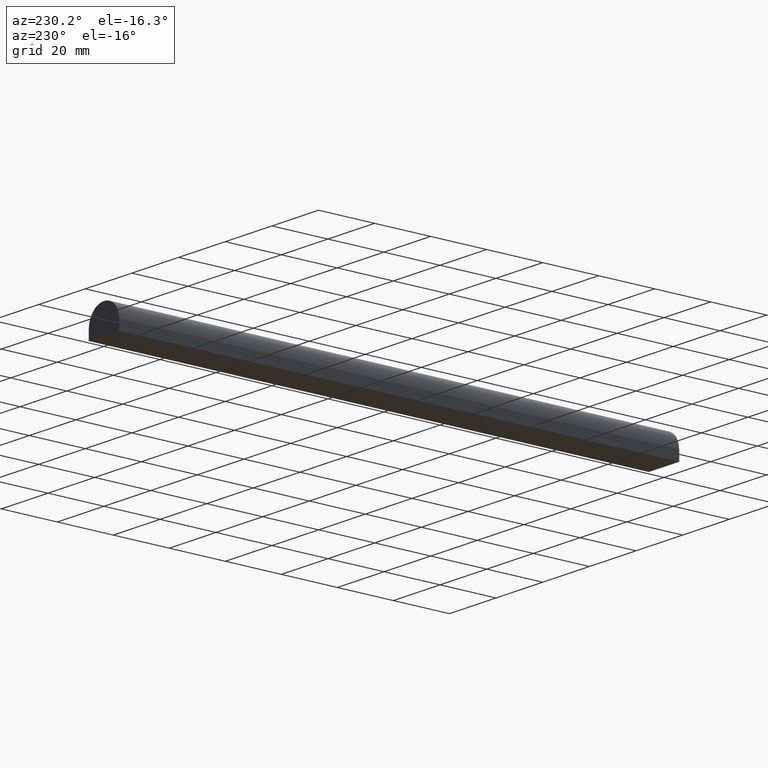
[diagram: clean part render]
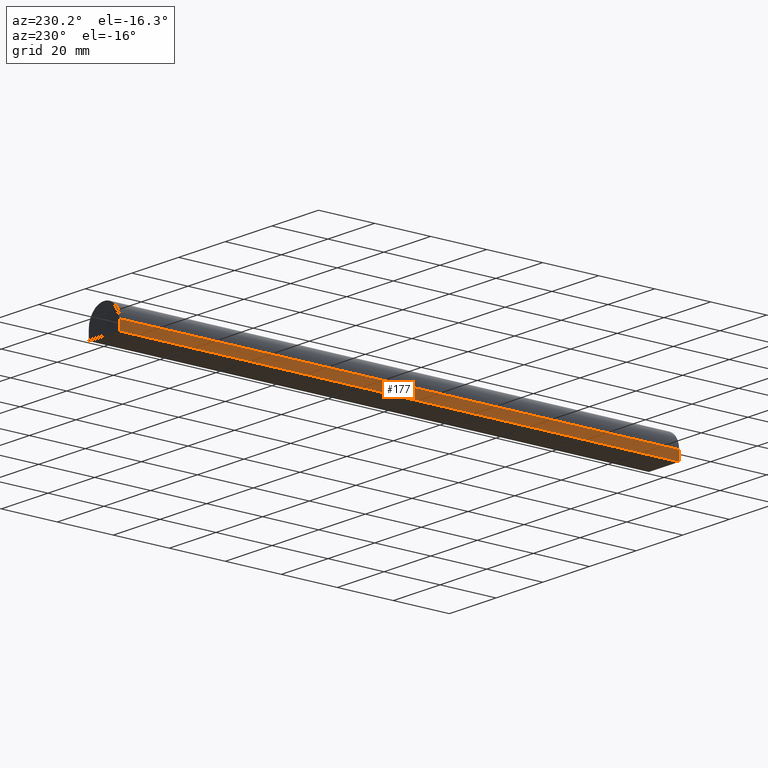
[diagram: same view with one face highlighted and labeled with its STEP entity id]
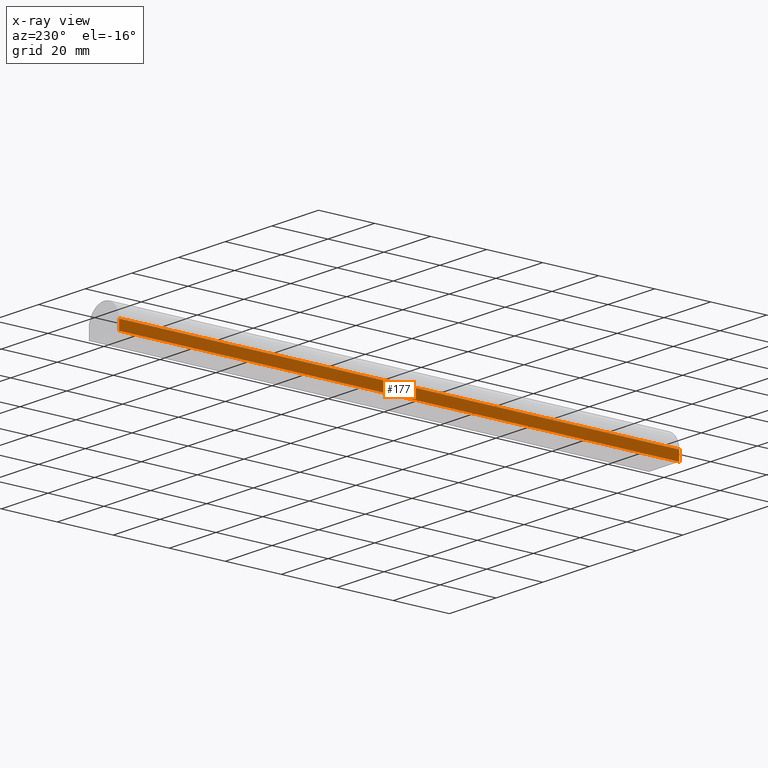
[diagram: x-ray of the same camera — body ghosted, the highlighted face saturated]
A machine part, auxiliary view. The second image highlights one B-rep face of the part: STEP entity #177.
The next image is the same camera in x-ray: the body ghosted, the highlighted face saturated — about 0% of this face is hidden behind the body in this view.
In plain terms, the highlighted planar face has unit normal (-1, 0, 0).
Its self-contained STEP definition (entity closure, byte-faithful):
#6 = DIRECTION ( 'NONE',  ( 0.0000000000000000000, 0.0000000000000000000, 1.000000000000000000 ) ) ;
#19 = PLANE ( 'NONE',  #131 ) ;
#23 = CARTESIAN_POINT ( 'NONE',  ( -6.500000000000000000, 0.0000000000000000000, -1.500000000000000000 ) ) ;
#39 = EDGE_CURVE ( 'NONE', #129, #91, #90, .T. ) ;
#41 = LINE ( 'NONE', #51, #47 ) ;
#45 = CARTESIAN_POINT ( 'NONE',  ( -6.500000000000000000, 200.0000000000000000, -5.000000000000000000 ) ) ;
#47 = VECTOR ( 'NONE', #110, 1000.000000000000000 ) ;
#51 = CARTESIAN_POINT ( 'NONE',  ( -6.500000000000000000, 0.0000000000000000000, 0.0000000000000000000 ) ) ;
#60 = VECTOR ( 'NONE', #174, 1000.000000000000000 ) ;
#62 = EDGE_CURVE ( 'NONE', #74, #129, #208, .T. ) ;
#64 = LINE ( 'NONE', #106, #92 ) ;
#74 = VERTEX_POINT ( 'NONE', #113 ) ;
#75 = VERTEX_POINT ( 'NONE', #23 ) ;
#77 = ORIENTED_EDGE ( 'NONE', *, *, #39, .T. ) ;
#90 = LINE ( 'NONE', #96, #115 ) ;
#91 = VERTEX_POINT ( 'NONE', #192 ) ;
#92 = VECTOR ( 'NONE', #107, 1000.000000000000000 ) ;
#96 = CARTESIAN_POINT ( 'NONE',  ( -6.500000000000000000, 1000.000000000000000, -5.000000000000000000 ) ) ;
#103 = ORIENTED_EDGE ( 'NONE', *, *, #62, .T. ) ;
#106 = CARTESIAN_POINT ( 'NONE',  ( -6.500000000000000000, 1000.000000000000000, -1.500000000000000000 ) ) ;
#107 = DIRECTION ( 'NONE',  ( 0.0000000000000000000, -1.000000000000000000, 0.0000000000000000000 ) ) ;
#108 = EDGE_CURVE ( 'NONE', #75, #91, #41, .T. ) ;
#110 = DIRECTION ( 'NONE',  ( -0.0000000000000000000, -0.0000000000000000000, -1.000000000000000000 ) ) ;
#113 = CARTESIAN_POINT ( 'NONE',  ( -6.500000000000000000, 200.0000000000000000, -1.500000000000000000 ) ) ;
#115 = VECTOR ( 'NONE', #191, 1000.000000000000000 ) ;
#118 = DIRECTION ( 'NONE',  ( -1.000000000000000000, 0.0000000000000000000, 0.0000000000000000000 ) ) ;
#129 = VERTEX_POINT ( 'NONE', #45 ) ;
#131 = AXIS2_PLACEMENT_3D ( 'NONE', #215, #118, #6 ) ;
#135 = CARTESIAN_POINT ( 'NONE',  ( -6.500000000000000000, 200.0000000000000000, 0.0000000000000000000 ) ) ;
#145 = ORIENTED_EDGE ( 'NONE', *, *, #108, .F. ) ;
#171 = FACE_OUTER_BOUND ( 'NONE', #237, .T. ) ;
#174 = DIRECTION ( 'NONE',  ( -0.0000000000000000000, -0.0000000000000000000, -1.000000000000000000 ) ) ;
#177 = ADVANCED_FACE ( 'NONE', ( #171 ), #19, .T. ) ;
#191 = DIRECTION ( 'NONE',  ( 0.0000000000000000000, -1.000000000000000000, 0.0000000000000000000 ) ) ;
#192 = CARTESIAN_POINT ( 'NONE',  ( -6.500000000000000000, 0.0000000000000000000, -5.000000000000000000 ) ) ;
#208 = LINE ( 'NONE', #135, #60 ) ;
#215 = CARTESIAN_POINT ( 'NONE',  ( -6.500000000000000000, 1000.000000000000000, -1.500000000000000000 ) ) ;
#220 = ORIENTED_EDGE ( 'NONE', *, *, #230, .F. ) ;
#230 = EDGE_CURVE ( 'NONE', #74, #75, #64, .T. ) ;
#237 = EDGE_LOOP ( 'NONE', ( #145, #220, #103, #77 ) ) ;